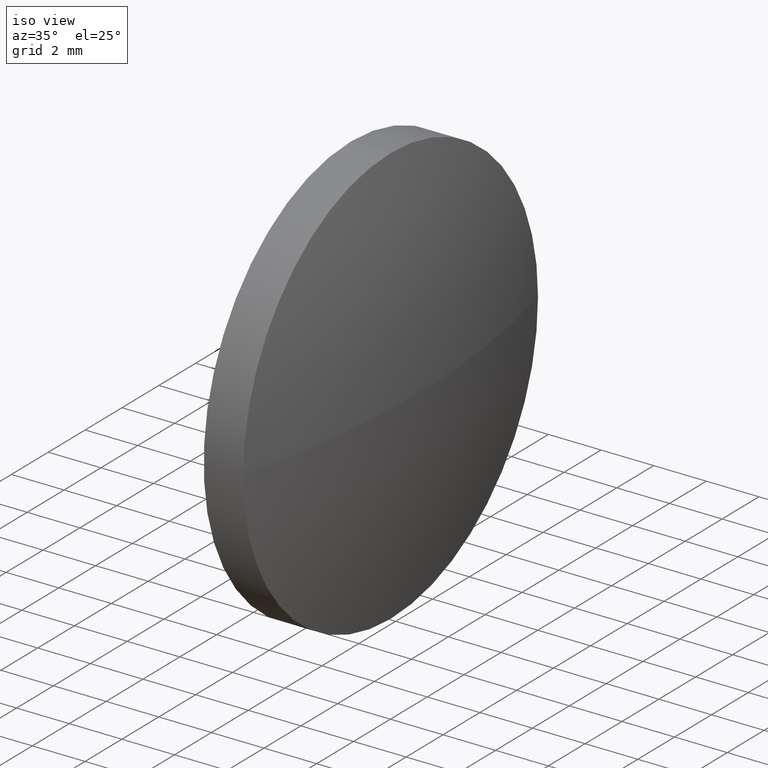
[diagram: clean part render]
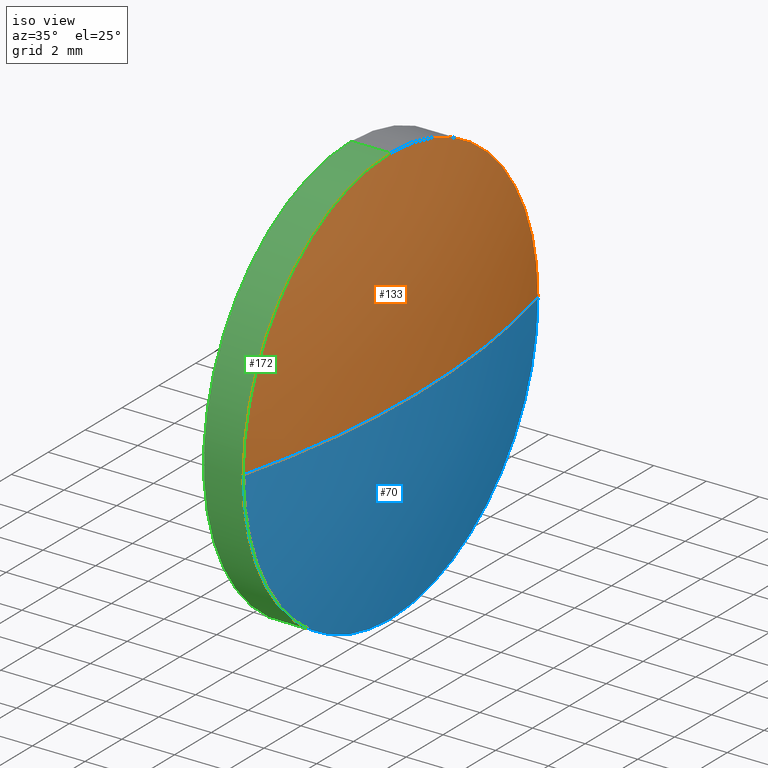
[diagram: same view with three faces highlighted in distinct colors, each labeled with its STEP entity id]
A machine part, iso view with three faces highlighted in distinct colors.
Their STEP definitions:

[orange] entity #133 — the highlighted spherical surface has radius 32.5 mm.
#1 = VERTEX_POINT ( 'NONE', #163 ) ;
#7 = AXIS2_PLACEMENT_3D ( 'NONE', #160, #134, #11 ) ;
#11 = DIRECTION ( 'NONE',  ( 0.0000000000000000000, 0.0000000000000000000, 1.000000000000000000 ) ) ;
#19 = AXIS2_PLACEMENT_3D ( 'NONE', #169, #113, #45 ) ;
#22 = ORIENTED_EDGE ( 'NONE', *, *, #27, .F. ) ;
#23 = EDGE_CURVE ( 'NONE', #116, #104, #119, .T. ) ;
#27 = EDGE_CURVE ( 'NONE', #114, #1, #141, .T. ) ;
#33 = EDGE_CURVE ( 'NONE', #1, #104, #129, .T. ) ;
#35 = AXIS2_PLACEMENT_3D ( 'NONE', #112, #42, #91 ) ;
#36 = ORIENTED_EDGE ( 'NONE', *, *, #174, .F. ) ;
#37 = DIRECTION ( 'NONE',  ( -0.0000000000000000000, 0.0000000000000000000, 1.000000000000000000 ) ) ;
#38 = DIRECTION ( 'NONE',  ( 0.0000000000000000000, 0.0000000000000000000, 1.000000000000000000 ) ) ;
#42 = DIRECTION ( 'NONE',  ( -0.0000000000000000000, 0.0000000000000000000, -1.000000000000000000 ) ) ;
#45 = DIRECTION ( 'NONE',  ( 0.0000000000000000000, 1.000000000000000000, 1.224646799147353200E-016 ) ) ;
#46 = ORIENTED_EDGE ( 'NONE', *, *, #33, .F. ) ;
#57 = SPHERICAL_SURFACE ( 'NONE', #35, 32.50000000000008500 ) ;
#84 = AXIS2_PLACEMENT_3D ( 'NONE', #109, #37, #148 ) ;
#85 = CARTESIAN_POINT ( 'NONE',  ( 622.1910119577842100, 133.4531705715125200, 0.0000000000000000000 ) ) ;
#87 = CARTESIAN_POINT ( 'NONE',  ( 622.1910119577842100, 117.4531705715125200, -9.797174393178823700E-016 ) ) ;
#91 = DIRECTION ( 'NONE',  ( 0.0000000000000000000, 1.000000000000000000, 0.0000000000000000000 ) ) ;
#94 = ORIENTED_EDGE ( 'NONE', *, *, #23, .T. ) ;
#104 = VERTEX_POINT ( 'NONE', #85 ) ;
#109 = CARTESIAN_POINT ( 'NONE',  ( 590.6910119577842100, 125.4531705715125000, 0.0000000000000000000 ) ) ;
#110 = DIRECTION ( 'NONE',  ( -1.000000000000000000, -0.0000000000000000000, -0.0000000000000000000 ) ) ;
#111 = CARTESIAN_POINT ( 'NONE',  ( 622.1910119577842100, 125.4531705715125000, 0.0000000000000000000 ) ) ;
#112 = CARTESIAN_POINT ( 'NONE',  ( 590.6910119577842100, 125.4531705715125000, 0.0000000000000000000 ) ) ;
#113 = DIRECTION ( 'NONE',  ( 0.0000000000000000000, 1.224646799147353200E-016, -1.000000000000000000 ) ) ;
#114 = VERTEX_POINT ( 'NONE', #87 ) ;
#116 = VERTEX_POINT ( 'NONE', #138 ) ;
#119 = CIRCLE ( 'NONE', #84, 32.50000000000008500 ) ;
#120 = FACE_OUTER_BOUND ( 'NONE', #122, .T. ) ;
#122 = EDGE_LOOP ( 'NONE', ( #36, #94, #46, #22 ) ) ;
#129 = CIRCLE ( 'NONE', #144, 7.999999999999979600 ) ;
#133 = ADVANCED_FACE ( 'NONE', ( #120 ), #57, .T. ) ;
#134 = DIRECTION ( 'NONE',  ( -1.000000000000000000, -0.0000000000000000000, -0.0000000000000000000 ) ) ;
#138 = CARTESIAN_POINT ( 'NONE',  ( 623.1910119577842100, 125.4531705715125000, 0.0000000000000000000 ) ) ;
#141 = CIRCLE ( 'NONE', #7, 7.999999999999979600 ) ;
#144 = AXIS2_PLACEMENT_3D ( 'NONE', #111, #110, #38 ) ;
#148 = DIRECTION ( 'NONE',  ( 1.000000000000000000, 0.0000000000000000000, 0.0000000000000000000 ) ) ;
#160 = CARTESIAN_POINT ( 'NONE',  ( 622.1910119577842100, 125.4531705715125000, 0.0000000000000000000 ) ) ;
#163 = CARTESIAN_POINT ( 'NONE',  ( 622.1910119577842100, 125.4531705715125000, 7.999999999999979600 ) ) ;
#165 = CIRCLE ( 'NONE', #19, 32.50000000000008500 ) ;
#169 = CARTESIAN_POINT ( 'NONE',  ( 590.6910119577842100, 125.4531705715125000, 0.0000000000000000000 ) ) ;
#174 = EDGE_CURVE ( 'NONE', #116, #114, #165, .T. ) ;

[blue] entity #70 — the highlighted spherical surface has radius 32.5 mm.
#6 = ORIENTED_EDGE ( 'NONE', *, *, #174, .T. ) ;
#8 = CIRCLE ( 'NONE', #178, 7.999999999999979600 ) ;
#19 = AXIS2_PLACEMENT_3D ( 'NONE', #169, #113, #45 ) ;
#23 = EDGE_CURVE ( 'NONE', #116, #104, #119, .T. ) ;
#26 = DIRECTION ( 'NONE',  ( 0.0000000000000000000, 0.0000000000000000000, 1.000000000000000000 ) ) ;
#29 = CARTESIAN_POINT ( 'NONE',  ( 622.1910119577842100, 125.4531705715125000, 0.0000000000000000000 ) ) ;
#31 = EDGE_CURVE ( 'NONE', #63, #114, #135, .T. ) ;
#37 = DIRECTION ( 'NONE',  ( -0.0000000000000000000, 0.0000000000000000000, 1.000000000000000000 ) ) ;
#43 = AXIS2_PLACEMENT_3D ( 'NONE', #83, #97, #52 ) ;
#45 = DIRECTION ( 'NONE',  ( 0.0000000000000000000, 1.000000000000000000, 1.224646799147353200E-016 ) ) ;
#51 = SPHERICAL_SURFACE ( 'NONE', #158, 32.50000000000008500 ) ;
#52 = DIRECTION ( 'NONE',  ( 0.0000000000000000000, 0.0000000000000000000, 1.000000000000000000 ) ) ;
#55 = DIRECTION ( 'NONE',  ( 0.0000000000000000000, 1.000000000000000000, 0.0000000000000000000 ) ) ;
#61 = ORIENTED_EDGE ( 'NONE', *, *, #23, .F. ) ;
#63 = VERTEX_POINT ( 'NONE', #123 ) ;
#65 = CARTESIAN_POINT ( 'NONE',  ( 590.6910119577842100, 125.4531705715125000, 0.0000000000000000000 ) ) ;
#66 = DIRECTION ( 'NONE',  ( -0.0000000000000000000, 0.0000000000000000000, -1.000000000000000000 ) ) ;
#70 = ADVANCED_FACE ( 'NONE', ( #106 ), #51, .T. ) ;
#81 = EDGE_LOOP ( 'NONE', ( #61, #6, #126, #156 ) ) ;
#83 = CARTESIAN_POINT ( 'NONE',  ( 622.1910119577842100, 125.4531705715125000, 0.0000000000000000000 ) ) ;
#84 = AXIS2_PLACEMENT_3D ( 'NONE', #109, #37, #148 ) ;
#85 = CARTESIAN_POINT ( 'NONE',  ( 622.1910119577842100, 133.4531705715125200, 0.0000000000000000000 ) ) ;
#87 = CARTESIAN_POINT ( 'NONE',  ( 622.1910119577842100, 117.4531705715125200, -9.797174393178823700E-016 ) ) ;
#95 = EDGE_CURVE ( 'NONE', #104, #63, #8, .T. ) ;
#97 = DIRECTION ( 'NONE',  ( -1.000000000000000000, -0.0000000000000000000, -0.0000000000000000000 ) ) ;
#104 = VERTEX_POINT ( 'NONE', #85 ) ;
#106 = FACE_OUTER_BOUND ( 'NONE', #81, .T. ) ;
#109 = CARTESIAN_POINT ( 'NONE',  ( 590.6910119577842100, 125.4531705715125000, 0.0000000000000000000 ) ) ;
#113 = DIRECTION ( 'NONE',  ( 0.0000000000000000000, 1.224646799147353200E-016, -1.000000000000000000 ) ) ;
#114 = VERTEX_POINT ( 'NONE', #87 ) ;
#116 = VERTEX_POINT ( 'NONE', #138 ) ;
#119 = CIRCLE ( 'NONE', #84, 32.50000000000008500 ) ;
#123 = CARTESIAN_POINT ( 'NONE',  ( 622.1910119577842100, 125.4531705715125000, -7.999999999999979600 ) ) ;
#126 = ORIENTED_EDGE ( 'NONE', *, *, #31, .F. ) ;
#128 = DIRECTION ( 'NONE',  ( -1.000000000000000000, -0.0000000000000000000, -0.0000000000000000000 ) ) ;
#135 = CIRCLE ( 'NONE', #43, 7.999999999999979600 ) ;
#138 = CARTESIAN_POINT ( 'NONE',  ( 623.1910119577842100, 125.4531705715125000, 0.0000000000000000000 ) ) ;
#148 = DIRECTION ( 'NONE',  ( 1.000000000000000000, 0.0000000000000000000, 0.0000000000000000000 ) ) ;
#156 = ORIENTED_EDGE ( 'NONE', *, *, #95, .F. ) ;
#158 = AXIS2_PLACEMENT_3D ( 'NONE', #65, #66, #55 ) ;
#165 = CIRCLE ( 'NONE', #19, 32.50000000000008500 ) ;
#169 = CARTESIAN_POINT ( 'NONE',  ( 590.6910119577842100, 125.4531705715125000, 0.0000000000000000000 ) ) ;
#174 = EDGE_CURVE ( 'NONE', #116, #114, #165, .T. ) ;
#178 = AXIS2_PLACEMENT_3D ( 'NONE', #29, #128, #26 ) ;

[green] entity #172 — the highlighted cylindrical surface (partial cylindrical patch) has radius 8 mm, axis along (-1, -0, -0).
#1 = VERTEX_POINT ( 'NONE', #163 ) ;
#2 = CIRCLE ( 'NONE', #118, 7.999999999999979600 ) ;
#4 = VERTEX_POINT ( 'NONE', #40 ) ;
#7 = AXIS2_PLACEMENT_3D ( 'NONE', #160, #134, #11 ) ;
#9 = EDGE_CURVE ( 'NONE', #12, #4, #2, .T. ) ;
#11 = DIRECTION ( 'NONE',  ( 0.0000000000000000000, 0.0000000000000000000, 1.000000000000000000 ) ) ;
#12 = VERTEX_POINT ( 'NONE', #124 ) ;
#13 = DIRECTION ( 'NONE',  ( 0.0000000000000000000, 0.0000000000000000000, 1.000000000000000000 ) ) ;
#18 = EDGE_CURVE ( 'NONE', #1, #4, #48, .T. ) ;
#27 = EDGE_CURVE ( 'NONE', #114, #1, #141, .T. ) ;
#30 = ORIENTED_EDGE ( 'NONE', *, *, #180, .F. ) ;
#31 = EDGE_CURVE ( 'NONE', #63, #114, #135, .T. ) ;
#40 = CARTESIAN_POINT ( 'NONE',  ( 620.6910119577842100, 125.4531705715125000, 7.999999999999979600 ) ) ;
#43 = AXIS2_PLACEMENT_3D ( 'NONE', #83, #97, #52 ) ;
#48 = LINE ( 'NONE', #162, #145 ) ;
#52 = DIRECTION ( 'NONE',  ( 0.0000000000000000000, 0.0000000000000000000, 1.000000000000000000 ) ) ;
#63 = VERTEX_POINT ( 'NONE', #123 ) ;
#74 = DIRECTION ( 'NONE',  ( -1.000000000000000000, -0.0000000000000000000, -0.0000000000000000000 ) ) ;
#80 = AXIS2_PLACEMENT_3D ( 'NONE', #175, #98, #99 ) ;
#83 = CARTESIAN_POINT ( 'NONE',  ( 622.1910119577842100, 125.4531705715125000, 0.0000000000000000000 ) ) ;
#87 = CARTESIAN_POINT ( 'NONE',  ( 622.1910119577842100, 117.4531705715125200, -9.797174393178823700E-016 ) ) ;
#97 = DIRECTION ( 'NONE',  ( -1.000000000000000000, -0.0000000000000000000, -0.0000000000000000000 ) ) ;
#98 = DIRECTION ( 'NONE',  ( -1.000000000000000000, -0.0000000000000000000, -0.0000000000000000000 ) ) ;
#99 = DIRECTION ( 'NONE',  ( 0.0000000000000000000, 0.0000000000000000000, 1.000000000000000000 ) ) ;
#108 = LINE ( 'NONE', #115, #142 ) ;
#114 = VERTEX_POINT ( 'NONE', #87 ) ;
#115 = CARTESIAN_POINT ( 'NONE',  ( 616.9657433374219400, 125.4531705715125000, -7.999999999999979600 ) ) ;
#118 = AXIS2_PLACEMENT_3D ( 'NONE', #159, #151, #13 ) ;
#123 = CARTESIAN_POINT ( 'NONE',  ( 622.1910119577842100, 125.4531705715125000, -7.999999999999979600 ) ) ;
#124 = CARTESIAN_POINT ( 'NONE',  ( 620.6910119577842100, 125.4531705715125000, -7.999999999999979600 ) ) ;
#132 = ORIENTED_EDGE ( 'NONE', *, *, #9, .F. ) ;
#134 = DIRECTION ( 'NONE',  ( -1.000000000000000000, -0.0000000000000000000, -0.0000000000000000000 ) ) ;
#135 = CIRCLE ( 'NONE', #43, 7.999999999999979600 ) ;
#141 = CIRCLE ( 'NONE', #7, 7.999999999999979600 ) ;
#142 = VECTOR ( 'NONE', #74, 1000.000000000000000 ) ;
#143 = ORIENTED_EDGE ( 'NONE', *, *, #31, .T. ) ;
#145 = VECTOR ( 'NONE', #149, 1000.000000000000000 ) ;
#147 = ORIENTED_EDGE ( 'NONE', *, *, #18, .T. ) ;
#149 = DIRECTION ( 'NONE',  ( -1.000000000000000000, -0.0000000000000000000, -0.0000000000000000000 ) ) ;
#151 = DIRECTION ( 'NONE',  ( -1.000000000000000000, -0.0000000000000000000, -0.0000000000000000000 ) ) ;
#159 = CARTESIAN_POINT ( 'NONE',  ( 620.6910119577842100, 125.4531705715125000, 0.0000000000000000000 ) ) ;
#160 = CARTESIAN_POINT ( 'NONE',  ( 622.1910119577842100, 125.4531705715125000, 0.0000000000000000000 ) ) ;
#161 = EDGE_LOOP ( 'NONE', ( #30, #143, #181, #147, #132 ) ) ;
#162 = CARTESIAN_POINT ( 'NONE',  ( 616.9657433374219400, 125.4531705715125000, 7.999999999999979600 ) ) ;
#163 = CARTESIAN_POINT ( 'NONE',  ( 622.1910119577842100, 125.4531705715125000, 7.999999999999979600 ) ) ;
#172 = ADVANCED_FACE ( 'NONE', ( #185 ), #177, .T. ) ;
#175 = CARTESIAN_POINT ( 'NONE',  ( 616.9657433374219400, 125.4531705715125000, 0.0000000000000000000 ) ) ;
#177 = CYLINDRICAL_SURFACE ( 'NONE', #80, 7.999999999999979600 ) ;
#180 = EDGE_CURVE ( 'NONE', #63, #12, #108, .T. ) ;
#181 = ORIENTED_EDGE ( 'NONE', *, *, #27, .T. ) ;
#185 = FACE_OUTER_BOUND ( 'NONE', #161, .T. ) ;